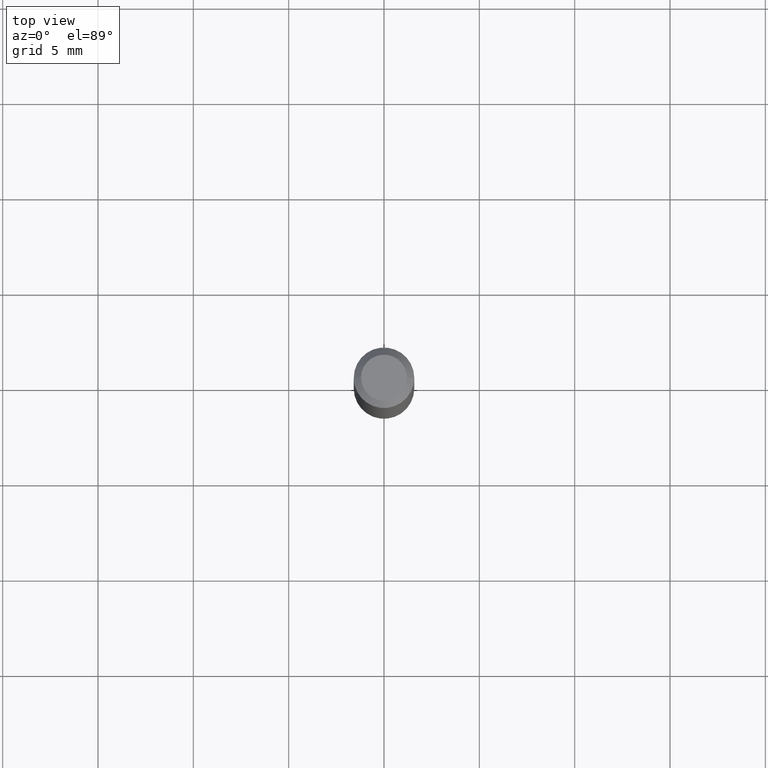
[diagram: clean part render]
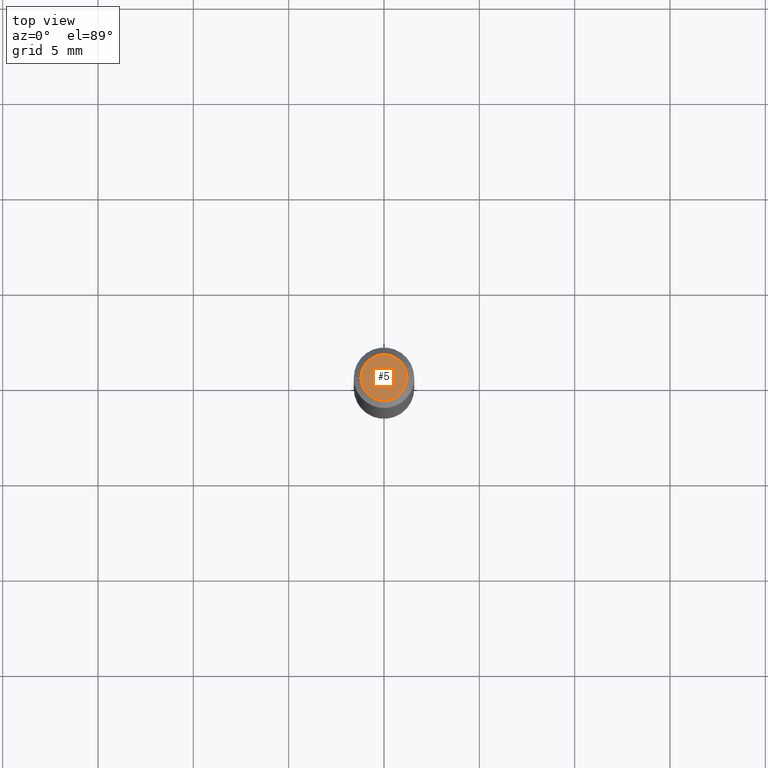
[diagram: same view with one face highlighted and labeled with its STEP entity id]
A machine part, top view. The second image highlights one B-rep face of the part: STEP entity #5.
In plain terms, the highlighted planar face has unit normal (0, -0, -1).
Its self-contained STEP definition (entity closure, byte-faithful):
#5 = ADVANCED_FACE ( 'NONE', ( #283 ), #440, .F. ) ;
#22 = CARTESIAN_POINT ( 'NONE',  ( 3.316907271900976589E-16, 0.04750000000000000749, -2.925296391183627249E-17 ) ) ;
#26 = VERTEX_POINT ( 'NONE', #508 ) ;
#27 = AXIS2_PLACEMENT_3D ( 'NONE', #22, #211, #500 ) ;
#28 = DIRECTION ( 'NONE',  ( -2.445468806185136597E-29, 3.491481338843145583E-15, 1.000000000000000000 ) ) ;
#70 = AXIS2_PLACEMENT_3D ( 'NONE', #511, #142, #470 ) ;
#142 = DIRECTION ( 'NONE',  ( -2.445468806185136597E-29, 3.491481338843145583E-15, 1.000000000000000000 ) ) ;
#177 = ORIENTED_EDGE ( 'NONE', *, *, #384, .T. ) ;
#183 = CARTESIAN_POINT ( 'NONE',  ( 0.04750000000000000749, -4.035134999187568762E-16, 2.731847993664288856E-16 ) ) ;
#208 = AXIS2_PLACEMENT_3D ( 'NONE', #216, #28, #261 ) ;
#211 = DIRECTION ( 'NONE',  ( 2.438088387897960049E-29, -3.491481338843145188E-15, -1.000000000000000000 ) ) ;
#216 = CARTESIAN_POINT ( 'NONE',  ( -6.680649051745406845E-45, 9.538196290434862081E-31, 2.731847993664263218E-16 ) ) ;
#235 = ORIENTED_EDGE ( 'NONE', *, *, #335, .T. ) ;
#245 = CIRCLE ( 'NONE', #70, 0.04750000000000000749 ) ;
#261 = DIRECTION ( 'NONE',  ( 1.000000000000000000, -6.982962677686266711E-15, 4.852736867747365086E-29 ) ) ;
#283 = FACE_OUTER_BOUND ( 'NONE', #364, .T. ) ;
#335 = EDGE_CURVE ( 'NONE', #346, #26, #397, .T. ) ;
#346 = VERTEX_POINT ( 'NONE', #183 ) ;
#364 = EDGE_LOOP ( 'NONE', ( #177, #235 ) ) ;
#384 = EDGE_CURVE ( 'NONE', #26, #346, #245, .T. ) ;
#397 = CIRCLE ( 'NONE', #208, 0.04750000000000000749 ) ;
#440 = PLANE ( 'NONE',  #27 ) ;
#470 = DIRECTION ( 'NONE',  ( 1.000000000000000000, -6.982962677686266711E-15, 4.852736867747365086E-29 ) ) ;
#500 = DIRECTION ( 'NONE',  ( -1.000000000000000000, 6.982962677686265922E-15, -4.876176775795935793E-29 ) ) ;
#508 = CARTESIAN_POINT ( 'NONE',  ( -0.04750000000000000749, 3.578768372314221353E-16, 2.731847993664239060E-16 ) ) ;
#511 = CARTESIAN_POINT ( 'NONE',  ( -6.680649051745406845E-45, 9.538196290434862081E-31, 2.731847993664263218E-16 ) ) ;